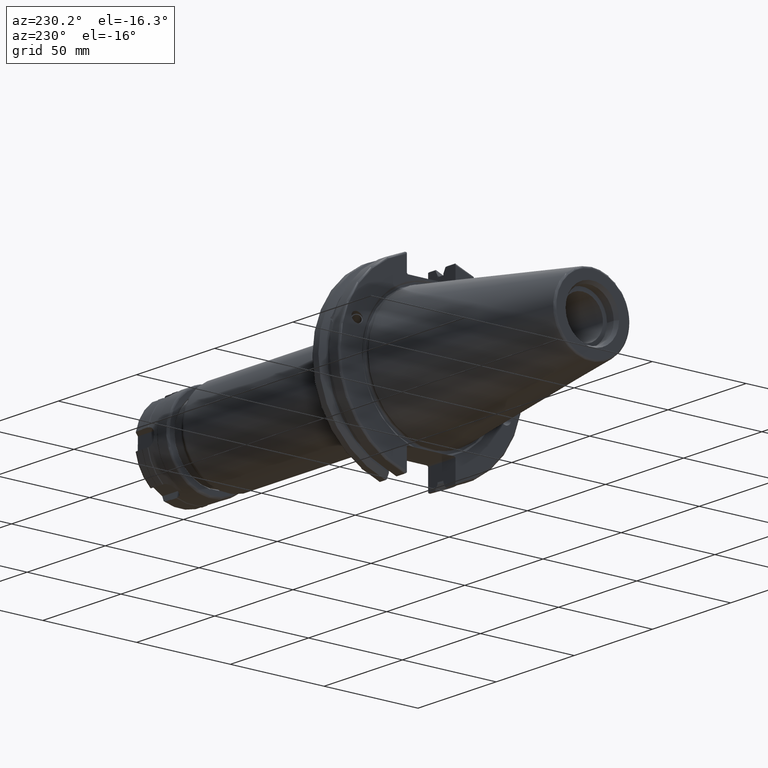
[diagram: clean part render]
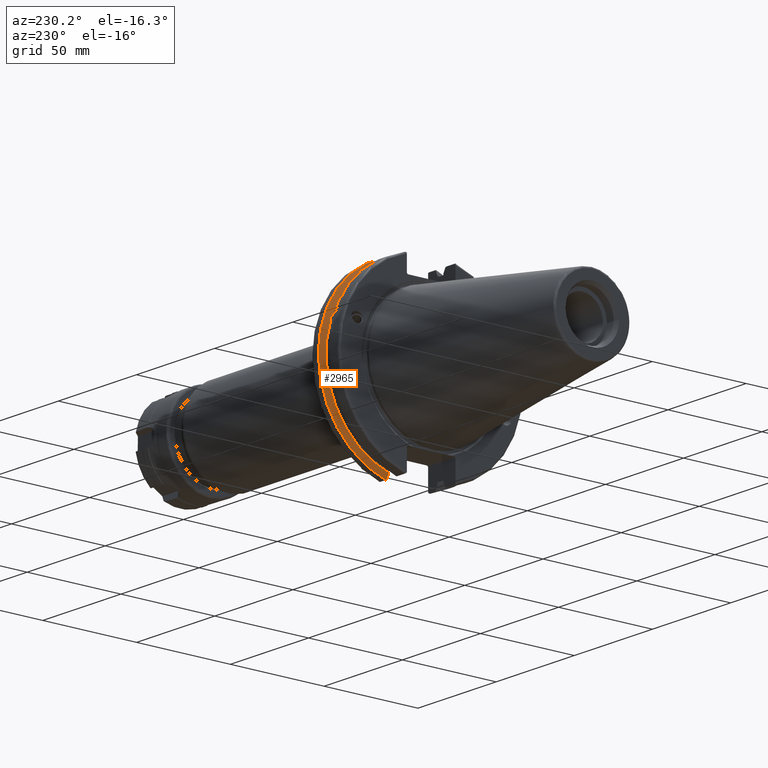
[diagram: same view with one face highlighted and labeled with its STEP entity id]
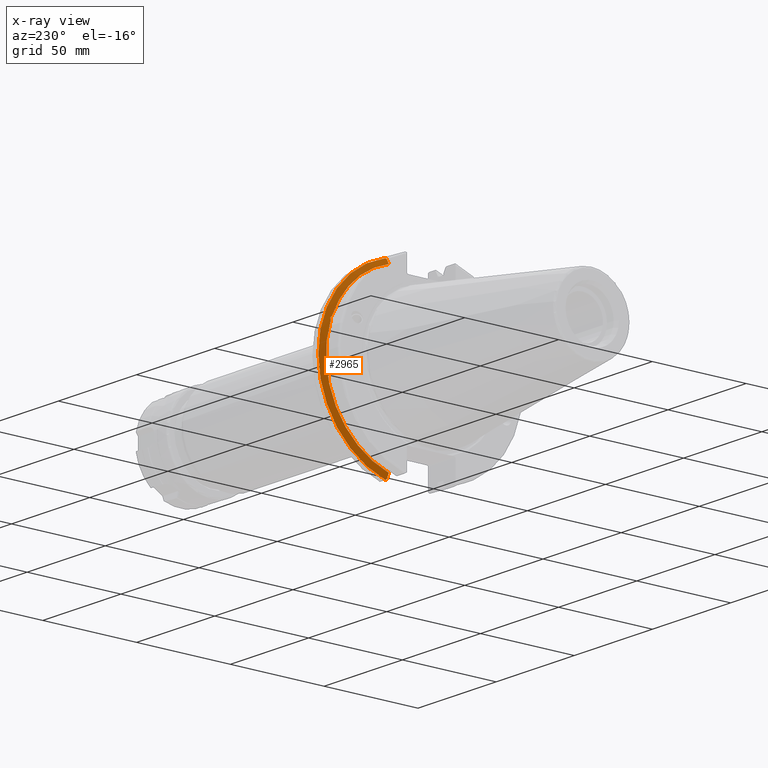
[diagram: x-ray of the same camera — body ghosted, the highlighted face saturated]
A machine part, auxiliary view. The second image highlights one B-rep face of the part: STEP entity #2965.
The next image is the same camera in x-ray: the body ghosted, the highlighted face saturated — about 0% of this face is hidden behind the body in this view.
In plain terms, the highlighted conical surface has half-angle 60 deg.
Its self-contained STEP definition (entity closure, byte-faithful):
#35=(
BOUNDED_CURVE()
B_SPLINE_CURVE(2,(#5013,#5014,#5015),.UNSPECIFIED.,.F.,.F.)
B_SPLINE_CURVE_WITH_KNOTS((3,3),(0.325260944932418,0.390084992222202),
 .UNSPECIFIED.)
CURVE()
GEOMETRIC_REPRESENTATION_ITEM()
RATIONAL_B_SPLINE_CURVE((1.00019140645959,1.00011477674843,1.))
REPRESENTATION_ITEM('')
);
#36=(
BOUNDED_CURVE()
B_SPLINE_CURVE(2,(#5030,#5031,#5032),.UNSPECIFIED.,.F.,.F.)
B_SPLINE_CURVE_WITH_KNOTS((3,3),(0.0558332664502613,0.331657177124503),
 .UNSPECIFIED.)
CURVE()
GEOMETRIC_REPRESENTATION_ITEM()
RATIONAL_B_SPLINE_CURVE((1.00012873637141,1.00038235575535,1.))
REPRESENTATION_ITEM('')
);
#43=(
BOUNDED_CURVE()
B_SPLINE_CURVE(2,(#5230,#5231,#5232),.UNSPECIFIED.,.F.,.F.)
B_SPLINE_CURVE_WITH_KNOTS((3,3),(0.,0.275823910675342),.UNSPECIFIED.)
CURVE()
GEOMETRIC_REPRESENTATION_ITEM()
RATIONAL_B_SPLINE_CURVE((1.,1.00038235575444,1.0001287363711))
REPRESENTATION_ITEM('')
);
#44=(
BOUNDED_CURVE()
B_SPLINE_CURVE(2,(#5247,#5248,#5249),.UNSPECIFIED.,.F.,.F.)
B_SPLINE_CURVE_WITH_KNOTS((3,3),(0.,0.0648240472896818),.UNSPECIFIED.)
CURVE()
GEOMETRIC_REPRESENTATION_ITEM()
RATIONAL_B_SPLINE_CURVE((1.,1.00011477674878,1.00019140646017))
REPRESENTATION_ITEM('')
);
#97=B_SPLINE_CURVE_WITH_KNOTS('',3,(#4852,#4853,#4854,#4855,#4856,#4857,
#4858,#4859),.UNSPECIFIED.,.F.,.F.,(4,2,2,4),(0.42671286835872,0.441644498666906,
0.480313313223129,0.518982127779353),.UNSPECIFIED.);
#101=B_SPLINE_CURVE_WITH_KNOTS('',3,(#4914,#4915,#4916,#4917,#4918,#4919,
#4920,#4921),.UNSPECIFIED.,.F.,.F.,(4,2,2,4),(0.518982127779353,0.557650942335577,
0.596319756891801,0.611251387199985),.UNSPECIFIED.);
#546=CONICAL_SURFACE('',#3278,47.8172386482472,1.0471975511966);
#736=FACE_OUTER_BOUND('',#920,.T.);
#920=EDGE_LOOP('',(#2367,#2368,#2369,#2370,#2371,#2372,#2373,#2374,#2375));
#1080=CIRCLE('',#3220,46.4219772964944);
#1098=CIRCLE('',#3271,49.2125);
#1101=CIRCLE('',#3279,46.4219772964944);
#1272=VERTEX_POINT('',#4849);
#1273=VERTEX_POINT('',#4851);
#1280=VERTEX_POINT('',#4912);
#1289=VERTEX_POINT('',#4954);
#1299=VERTEX_POINT('',#5010);
#1300=VERTEX_POINT('',#5012);
#1341=VERTEX_POINT('',#5227);
#1342=VERTEX_POINT('',#5229);
#1345=VERTEX_POINT('',#5245);
#1605=EDGE_CURVE('',#1273,#1272,#97,.T.);
#1613=EDGE_CURVE('',#1272,#1280,#101,.T.);
#1625=EDGE_CURVE('',#1289,#1273,#1080,.T.);
#1641=EDGE_CURVE('',#1299,#1300,#35,.T.);
#1647=EDGE_CURVE('',#1299,#1289,#36,.T.);
#1708=EDGE_CURVE('',#1342,#1341,#43,.T.);
#1716=EDGE_CURVE('',#1345,#1341,#44,.T.);
#1717=EDGE_CURVE('',#1300,#1345,#1098,.T.);
#1723=EDGE_CURVE('',#1280,#1342,#1101,.T.);
#2367=ORIENTED_EDGE('',*,*,#1605,.T.);
#2368=ORIENTED_EDGE('',*,*,#1613,.T.);
#2369=ORIENTED_EDGE('',*,*,#1723,.T.);
#2370=ORIENTED_EDGE('',*,*,#1708,.T.);
#2371=ORIENTED_EDGE('',*,*,#1716,.F.);
#2372=ORIENTED_EDGE('',*,*,#1717,.F.);
#2373=ORIENTED_EDGE('',*,*,#1641,.F.);
#2374=ORIENTED_EDGE('',*,*,#1647,.T.);
#2375=ORIENTED_EDGE('',*,*,#1625,.T.);
#2965=ADVANCED_FACE('',(#736),#546,.T.);
#3220=AXIS2_PLACEMENT_3D('',#4955,#3700,#3701);
#3271=AXIS2_PLACEMENT_3D('',#5251,#3849,#3850);
#3278=AXIS2_PLACEMENT_3D('',#5264,#3866,#3867);
#3279=AXIS2_PLACEMENT_3D('',#5265,#3868,#3869);
#3700=DIRECTION('center_axis',(1.,0.,0.));
#3701=DIRECTION('ref_axis',(0.,0.,-1.));
#3849=DIRECTION('center_axis',(1.,0.,0.));
#3850=DIRECTION('ref_axis',(0.,0.,-1.));
#3866=DIRECTION('center_axis',(1.,0.,0.));
#3867=DIRECTION('ref_axis',(0.,1.,0.));
#3868=DIRECTION('center_axis',(1.,0.,0.));
#3869=DIRECTION('ref_axis',(0.,0.,-1.));
#4849=CARTESIAN_POINT('',(13.2341,43.923494649906,15.9868446375166));
#4851=CARTESIAN_POINT('',(13.0491,43.9096390749305,15.0646464421033));
#4852=CARTESIAN_POINT('Ctrl Pts',(13.0491,43.9096390749305,15.0646464421033));
#4853=CARTESIAN_POINT('Ctrl Pts',(13.0660815609661,43.9250360001461,15.1104047527575));
#4854=CARTESIAN_POINT('Ctrl Pts',(13.0821132459668,43.9385582852181,15.1564111356409));
#4855=CARTESIAN_POINT('Ctrl Pts',(13.1358132615496,43.9797830409459,15.3217566390709));
#4856=CARTESIAN_POINT('Ctrl Pts',(13.1719838933644,43.9989016655819,15.4570249042868));
#4857=CARTESIAN_POINT('Ctrl Pts',(13.2212913174802,43.9931221605126,15.7289849146254));
#4858=CARTESIAN_POINT('Ctrl Pts',(13.2341,43.9675796948952,15.8657219718732));
#4859=CARTESIAN_POINT('Ctrl Pts',(13.2341,43.923494649906,15.9868446375166));
#4912=CARTESIAN_POINT('',(13.0491,43.3201030900029,16.6843832486479));
#4914=CARTESIAN_POINT('Ctrl Pts',(13.2341,43.923494649906,15.9868446375166));
#4915=CARTESIAN_POINT('Ctrl Pts',(13.2341,43.8794096049169,16.10796730316));
#4916=CARTESIAN_POINT('Ctrl Pts',(13.2212913174802,43.8110833825828,16.2291323464528));
#4917=CARTESIAN_POINT('Ctrl Pts',(13.1719838933644,43.6406982153492,16.441180795372));
#4918=CARTESIAN_POINT('Ctrl Pts',(13.1358132615496,43.5391037343221,16.5325130832406));
#4919=CARTESIAN_POINT('Ctrl Pts',(13.0821132459668,43.4012416983557,16.6326763251437));
#4920=CARTESIAN_POINT('Ctrl Pts',(13.0660815609661,43.3613106941341,16.6592273018006));
#4921=CARTESIAN_POINT('Ctrl Pts',(13.0491,43.3201030900029,16.6843832486479));
#4954=CARTESIAN_POINT('',(13.0491,12.95,-44.5791147973605));
#4955=CARTESIAN_POINT('Origin',(13.0491,0.,0.));
#5010=CARTESIAN_POINT('',(14.3818103943757,12.95,-46.9780755322918));
#5012=CARTESIAN_POINT('',(14.6602090340487,13.4317035994433,-47.3440544806494));
#5013=CARTESIAN_POINT('Ctrl Pts',(14.3818103943757,12.95,-46.9780755322918));
#5014=CARTESIAN_POINT('Ctrl Pts',(14.5199310333618,13.1896660169966,-47.1601640966265));
#5015=CARTESIAN_POINT('Ctrl Pts',(14.6602090340487,13.4317035994433,-47.3440544806494));
#5030=CARTESIAN_POINT('Ctrl Pts',(14.3818103943757,12.95,-46.9780755322918));
#5031=CARTESIAN_POINT('Ctrl Pts',(13.6979955094591,12.95,-45.7494966802465));
#5032=CARTESIAN_POINT('Ctrl Pts',(13.0491,12.95,-44.5791147973605));
#5227=CARTESIAN_POINT('',(14.3818103943757,12.95,46.9780755322918));
#5229=CARTESIAN_POINT('',(13.0491,12.95,44.5791147973605));
#5230=CARTESIAN_POINT('Ctrl Pts',(13.0491,12.95,44.5791147973605));
#5231=CARTESIAN_POINT('Ctrl Pts',(13.6979955094449,12.95,45.749496680221));
#5232=CARTESIAN_POINT('Ctrl Pts',(14.3818103943757,12.95,46.9780755322918));
#5245=CARTESIAN_POINT('',(14.6602090340487,13.4317035994433,47.3440544806494));
#5247=CARTESIAN_POINT('Ctrl Pts',(14.6602090340487,13.4317035994433,47.3440544806494));
#5248=CARTESIAN_POINT('Ctrl Pts',(14.5199310333617,13.1896660169965,47.1601640966263));
#5249=CARTESIAN_POINT('Ctrl Pts',(14.3818103943757,12.95,46.9780755322918));
#5251=CARTESIAN_POINT('Origin',(14.6602090340487,0.,0.));
#5264=CARTESIAN_POINT('Origin',(13.8546545170244,0.,0.));
#5265=CARTESIAN_POINT('Origin',(13.0491,0.,0.));